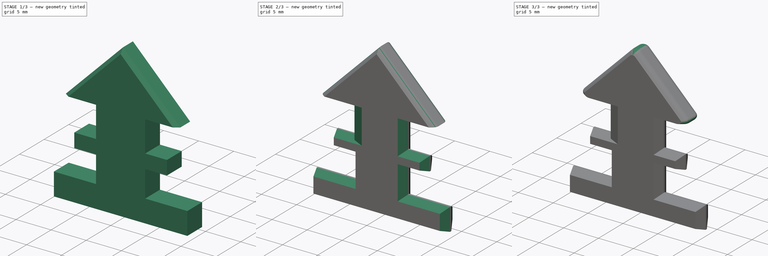
[diagram: build sequence overview — one tinted view per stage of 3, left to right]
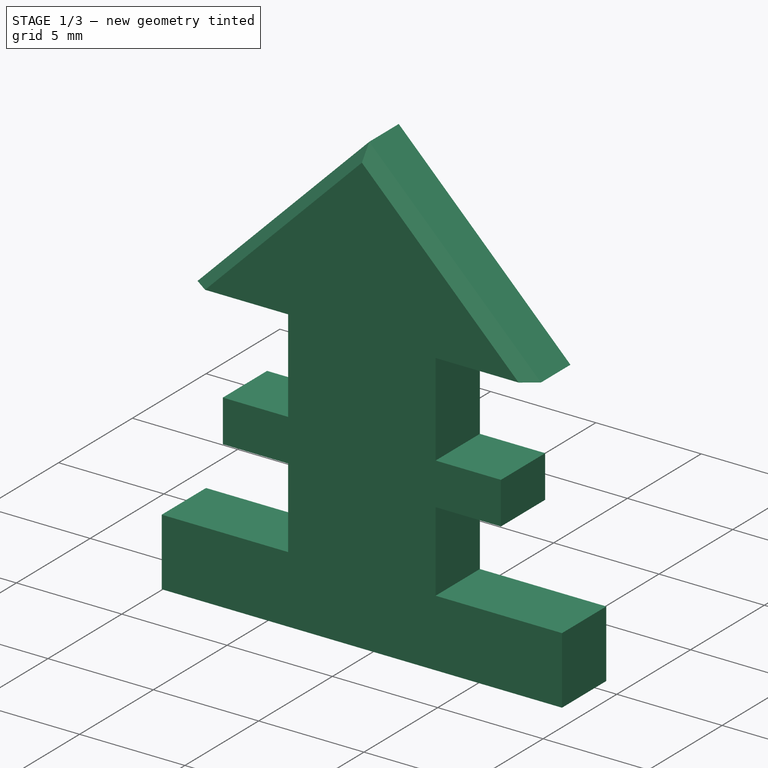
[diagram: stage 1 of 3 — iso view after this stage's code; geometry added in this stage tinted green]
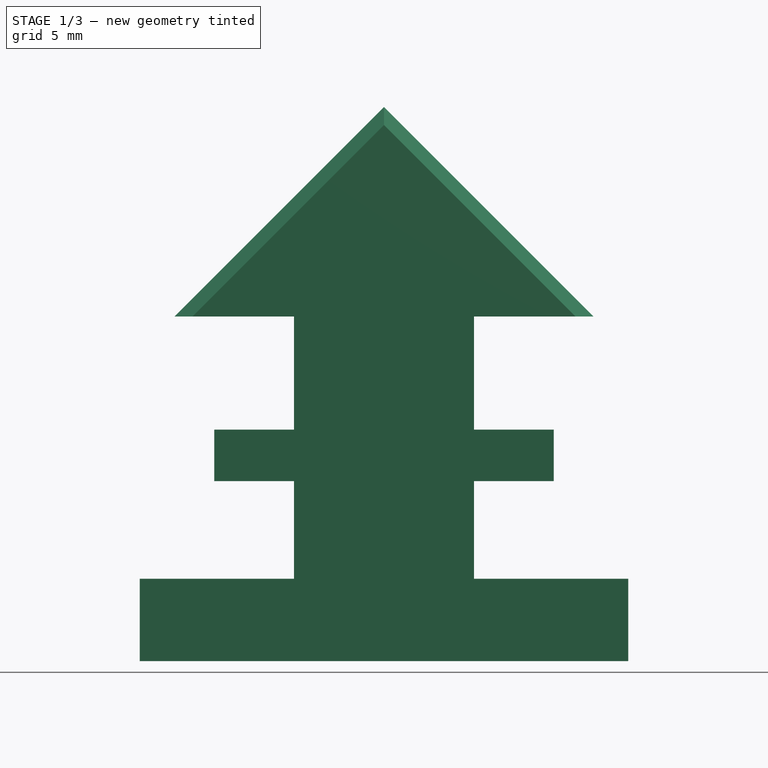
[diagram: stage 1 of 3 — front view after this stage's code; geometry added in this stage tinted green]
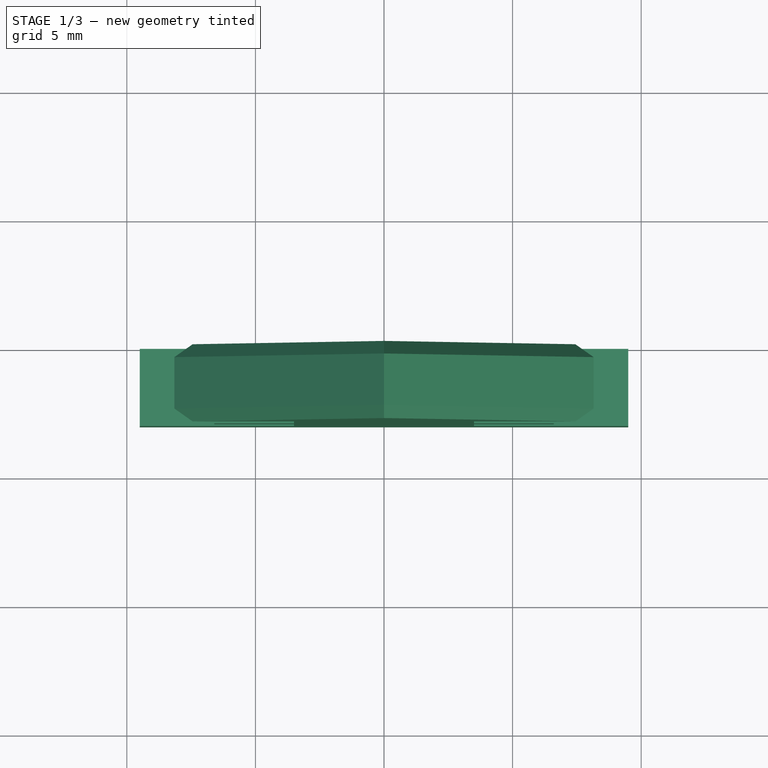
[diagram: stage 1 of 3 — top view after this stage's code; geometry added in this stage tinted green]
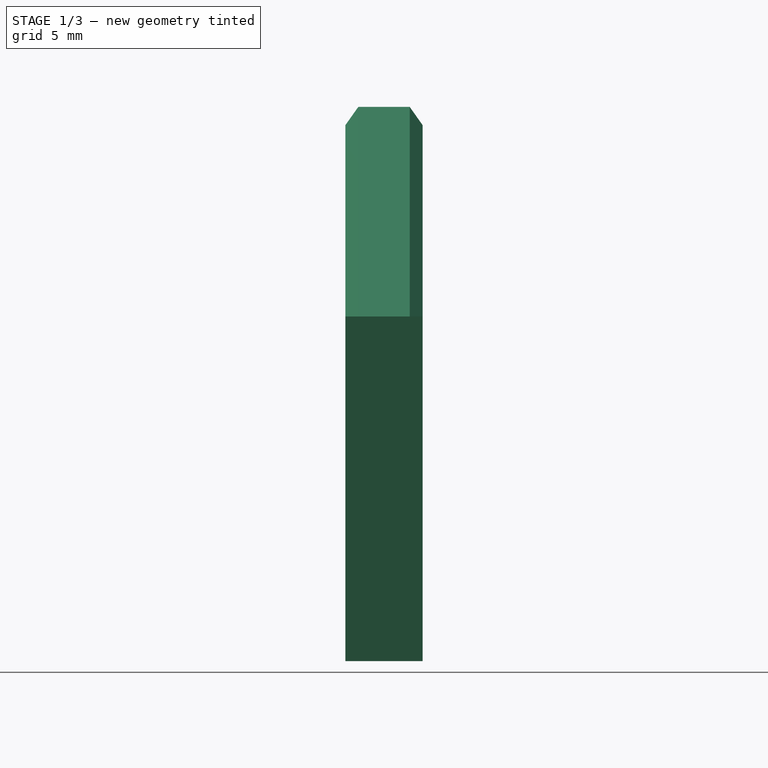
[diagram: stage 1 of 3 — right view after this stage's code; geometry added in this stage tinted green]
FCSTD DOCUMENT  (FreeCAD 1.0R39285 (Git))
Label: Клипса для жгута
License: All rights reserved
LicenseURL: https://en.wikipedia.org/wiki/All_rights_reserved
objects: PartDesign::Chamfer×3, PartDesign::Fillet×3, Sketcher::SketchObject×1, PartDesign::Pad×1, PartDesign::Body×1
note: 24 computed .brp shape members not serialized (recipe doc carries the construction recipe); baked Part::Feature solids carry a one-line shape summary decoded from their .brp

FEATURE [Sketcher::SketchObject] Sketch
  ArcFitTolerance = 1e-06
  AttachmentSupport = -> [XZ_Plane]
  FullyConstrained = true
  MakeInternals = false
  MapMode = 5
  Placement = pos=(0,0,0) rot=(1,0,0;1.5708rad)
  sketch-geometry (21):
    g0: LineSegment StartX=-8.15 StartY=2.625 StartZ=0 EndX=0 EndY=10.775 EndZ=0
    g1: LineSegment StartX=0 StartY=10.775 StartZ=0 EndX=8.15 EndY=2.625 EndZ=0
    g2: LineSegment StartX=8.15 StartY=2.625 StartZ=0 EndX=3.5 EndY=2.625 EndZ=0
    g3: LineSegment StartX=3.5 StartY=2.625 StartZ=0 EndX=3.5 EndY=-1.775 EndZ=0
    g4: LineSegment StartX=3.5 StartY=-1.775 StartZ=0 EndX=6.6 EndY=-1.775 EndZ=0
    g5: LineSegment StartX=6.6 StartY=-1.775 StartZ=0 EndX=6.6 EndY=-3.775 EndZ=0
    g6: LineSegment StartX=6.6 StartY=-3.775 StartZ=0 EndX=3.5 EndY=-3.775 EndZ=0
    g7: LineSegment StartX=3.5 StartY=-3.775 StartZ=0 EndX=3.5 EndY=-7.575 EndZ=0
    g8: LineSegment StartX=3.5 StartY=-7.575 StartZ=0 EndX=9.5 EndY=-7.575 EndZ=0
    g9: LineSegment StartX=9.5 StartY=-7.575 StartZ=0 EndX=9.5 EndY=-10.775 EndZ=0
    g10: LineSegment StartX=-8.15 StartY=2.625 StartZ=0 EndX=-3.5 EndY=2.625 EndZ=0
    g11: LineSegment StartX=-3.5 StartY=2.625 StartZ=0 EndX=-3.5 EndY=-1.775 EndZ=0
    g12: LineSegment StartX=-3.5 StartY=-1.775 StartZ=0 EndX=-6.6 EndY=-1.775 EndZ=0
    g13: LineSegment StartX=-6.6 StartY=-1.775 StartZ=0 EndX=-6.6 EndY=-3.775 EndZ=0
    g14: LineSegment StartX=-6.6 StartY=-3.775 StartZ=0 EndX=-3.5 EndY=-3.775 EndZ=0
    g15: LineSegment StartX=-3.5 StartY=-3.775 StartZ=0 EndX=-3.5 EndY=-7.575 EndZ=0
    g16: LineSegment StartX=-3.5 StartY=-7.575 StartZ=0 EndX=-9.5 EndY=-7.575 EndZ=0
    g17: LineSegment StartX=-9.5 StartY=-7.575 StartZ=0 EndX=-9.5 EndY=-10.775 EndZ=0
    g18: LineSegment StartX=-9.5 StartY=-10.775 StartZ=0 EndX=0 EndY=-10.775 EndZ=0
    g19: LineSegment StartX=0 StartY=-10.775 StartZ=0 EndX=9.5 EndY=-10.775 EndZ=0
    g20: LineSegment [constr] StartX=0 StartY=-10.775 StartZ=0 EndX=0 EndY=10.775 EndZ=0
  constraints (56):
    c: Coincident(g0,g1)
    c: Coincident(g1,g2)
    c: Coincident(g2,g3)
    c: Vertical(g3)
    c: Coincident(g3,g4)
    c: Coincident(g4,g5)
    c: Coincident(g5,g6)
    c: Coincident(g6,g7)
    c: Vertical(g7)
    c: Coincident(g7,g8)
    c: Coincident(g8,g9)
    c: Coincident(g10,g11)
    c: Coincident(g11,g12)
    c: Coincident(g12,g13)
    c: Coincident(g13,g14)
    c: Coincident(g14,g15)
    c: Vertical(g15)
    c: Coincident(g15,g16)
    c: Horizontal(g16)
    c: Coincident(g16,g17)
    c: Coincident(g17,g18)
    c: Coincident(g19,g9)
    c: Coincident(g18,g19)
    c: Horizontal(g18)
    c: Horizontal(g19)
    c: PointOnObject(g18,g-2)
    c: Vertical(g11)
    c: Horizontal(g12)
    c: Vertical(g13)
    c: Horizontal(g14)
    c: Vertical(g17)
    c: Vertical(g9)
    c: Horizontal(g8)
    c: Horizontal(g6)
    c: Vertical(g5)
    c: Horizontal(g4)
    c: Horizontal(g2)
    c: Angle(g0,g1) = 1.5708
    c: Symmetric(g8,g16,g-2)
    c: Symmetric(g4,g12,g-2)
    c: Symmetric(g10,g1,g-2)
    c: Symmetric(g2,g10,g-2)
    c: Coincident(g10,g0)
    c: Symmetric(g6,g14,g-2)
    c: Vertical(g6,g3)
    c: Coincident(g20,g18)
    c: Coincident(g20,g0)
    c: DistanceX(g11,g3) = 7
    c: DistanceX(g0,g1) = 16.3
    c: DistanceY(g3,g3) = 4.4
    c: DistanceY(g7,g7) = 3.8
    c: DistanceY(g9,g9) = 3.2
    c: DistanceX(g17,g9) = 19
    c: DistanceX(g12,g4) = 13.2
    c: DistanceY(g5,g5) = 2
    c: Symmetric(g18,g0,g-1)
FEATURE [PartDesign::Pad] Pad
  Direction = (0,-1,2e-16)
  Length = 3
  Length2 = 10
  Placement = pos=(0,0,0) rot=(1,0,0;1.5708rad)
  Profile = -> Sketch
  ReferenceAxis = -> Sketch [N_Axis]
  Refine = true
  Suppressed = false
  Type = 0
FEATURE [PartDesign::Chamfer] Chamfer
  Angle = 45
  Base = -> Pad [Edge7,Edge6,Edge4,Edge3]
  BaseFeature = -> Pad
  ChamferType = 0
  FlipDirection = false
  Placement = pos=(0,0,0) rot=(1,0,0;1.5708rad)
  Refine = true
  Size = 0.5
  Size2 = 1
  SupportTransform = false
  Suppressed = false
  UseAllEdges = false
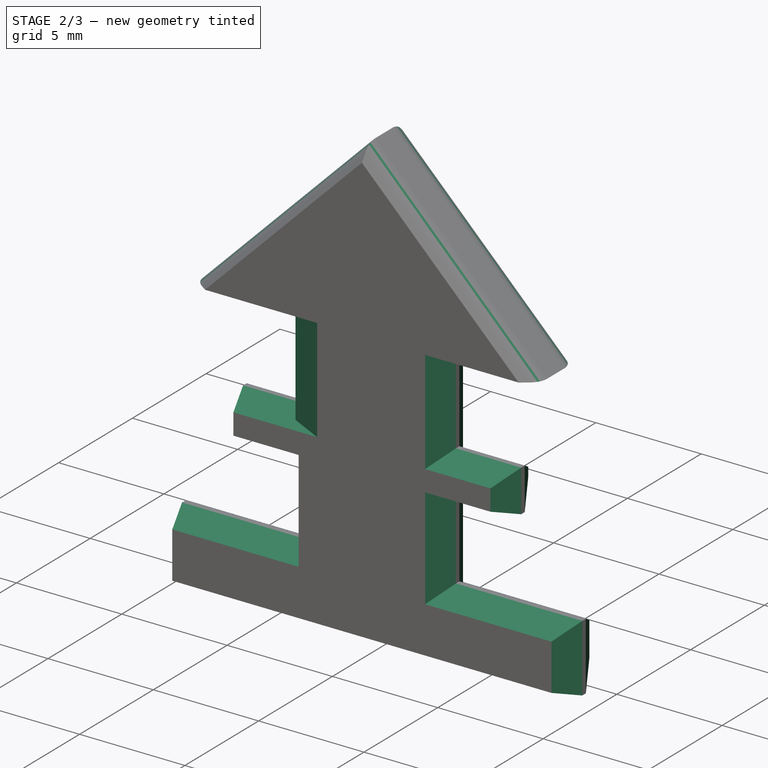
[diagram: stage 2 of 3 — iso view after this stage's code; geometry added in this stage tinted green]
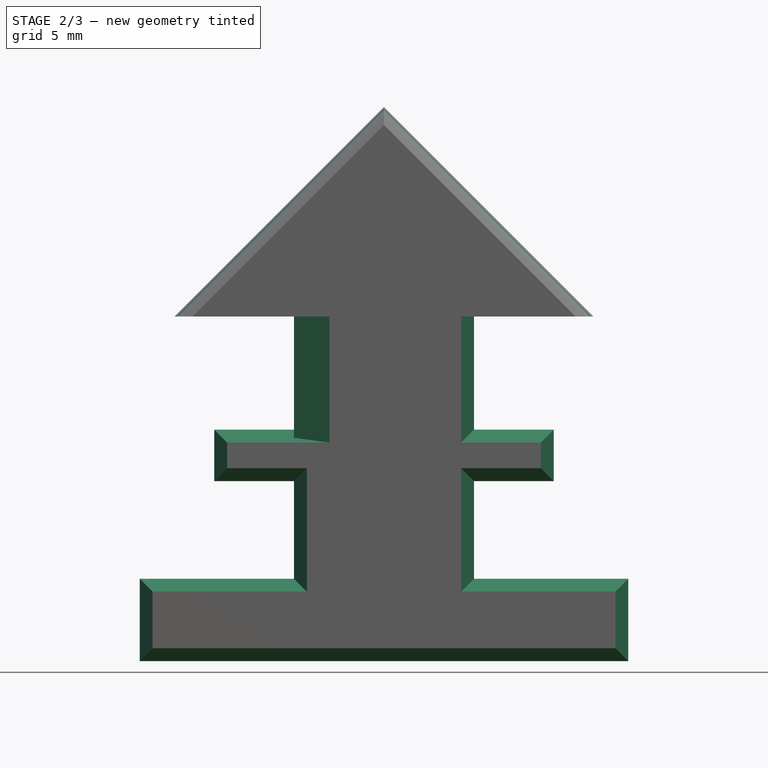
[diagram: stage 2 of 3 — front view after this stage's code; geometry added in this stage tinted green]
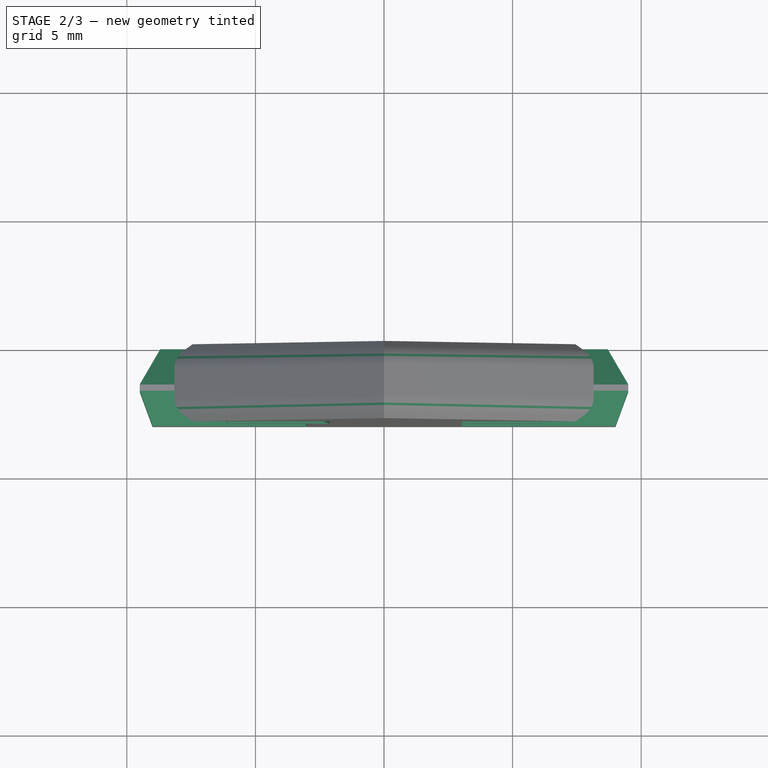
[diagram: stage 2 of 3 — top view after this stage's code; geometry added in this stage tinted green]
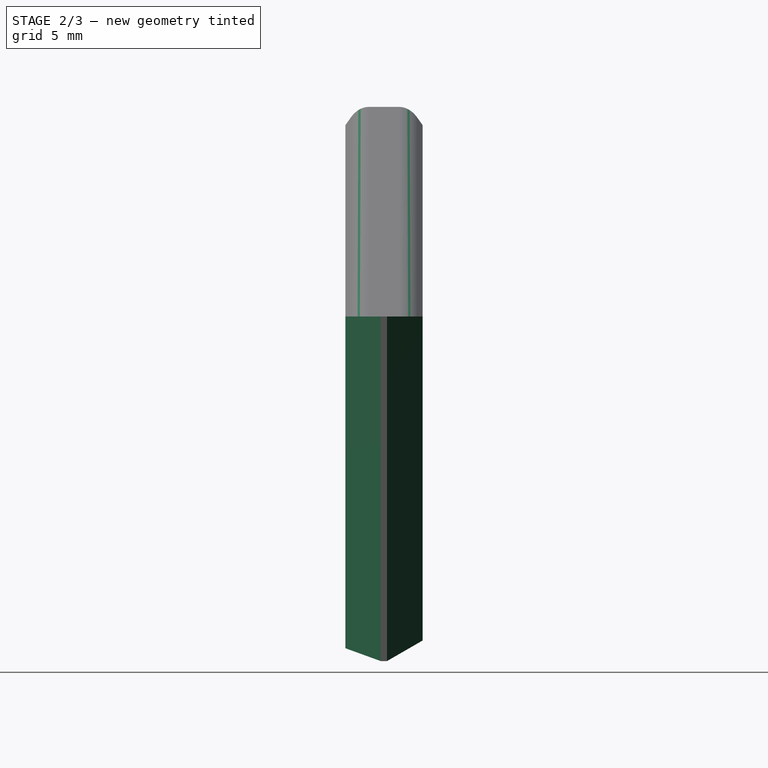
[diagram: stage 2 of 3 — right view after this stage's code; geometry added in this stage tinted green]
FEATURE [PartDesign::Fillet] Fillet
  Base = -> Chamfer [Edge2,Edge14,Edge15,Edge3]
  BaseFeature = -> Chamfer
  Placement = pos=(0,0,0) rot=(1,0,0;1.5708rad)
  Radius = 1
  Refine = true
  SupportTransform = false
  Suppressed = false
  UseAllEdges = false
FEATURE [PartDesign::Chamfer] Chamfer001
  Angle = 60
  Base = -> Fillet [Edge28,Edge30,Edge32,Edge34,Edge36,Edge38,Edge39,Edge37,Edge35,Edge33,Edge31,Edge29,Edge27,Edge26,Edge25]
  BaseFeature = -> Fillet
  ChamferType = 2
  FlipDirection = false
  Placement = pos=(0,0,0) rot=(1,0,0;1.5708rad)
  Refine = true
  Size = 0.8
  Size2 = 1
  SupportTransform = false
  Suppressed = false
  UseAllEdges = false
FEATURE [PartDesign::Chamfer] Chamfer002
  Angle = 70
  Base = -> Chamfer001 [Edge30,Edge32,Edge31,Edge29,Edge27,Edge25,Edge23,Edge12,Edge18,Edge20,Edge21,Edge22,Edge24,Edge26,Edge28]
  BaseFeature = -> Chamfer001
  ChamferType = 2
  FlipDirection = false
  Placement = pos=(0,0,0) rot=(1,0,0;1.5708rad)
  Refine = true
  Size = 0.5
  Size2 = 1
  SupportTransform = false
  Suppressed = false
  UseAllEdges = false
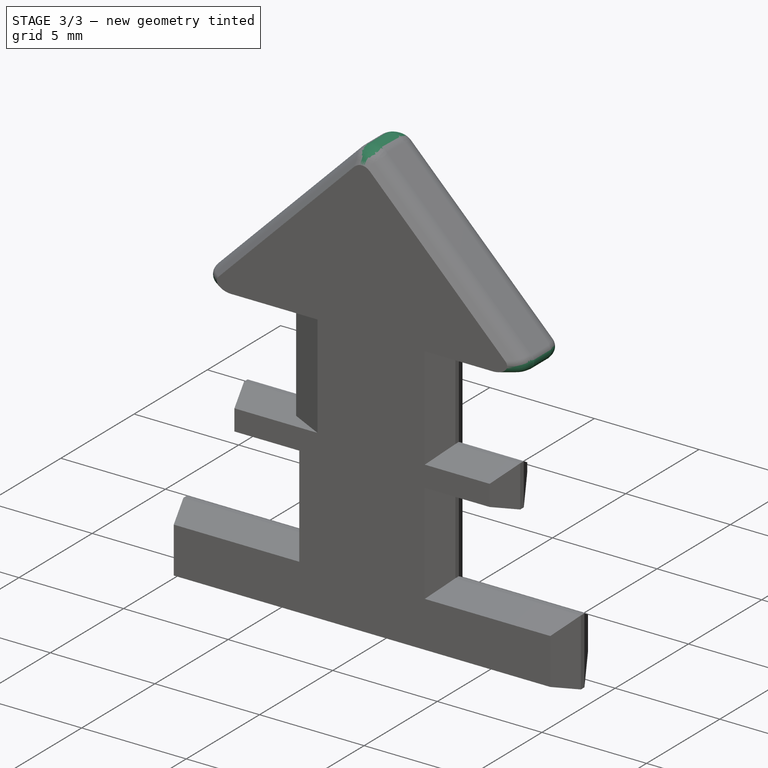
[diagram: stage 3 of 3 — iso view after this stage's code; geometry added in this stage tinted green]
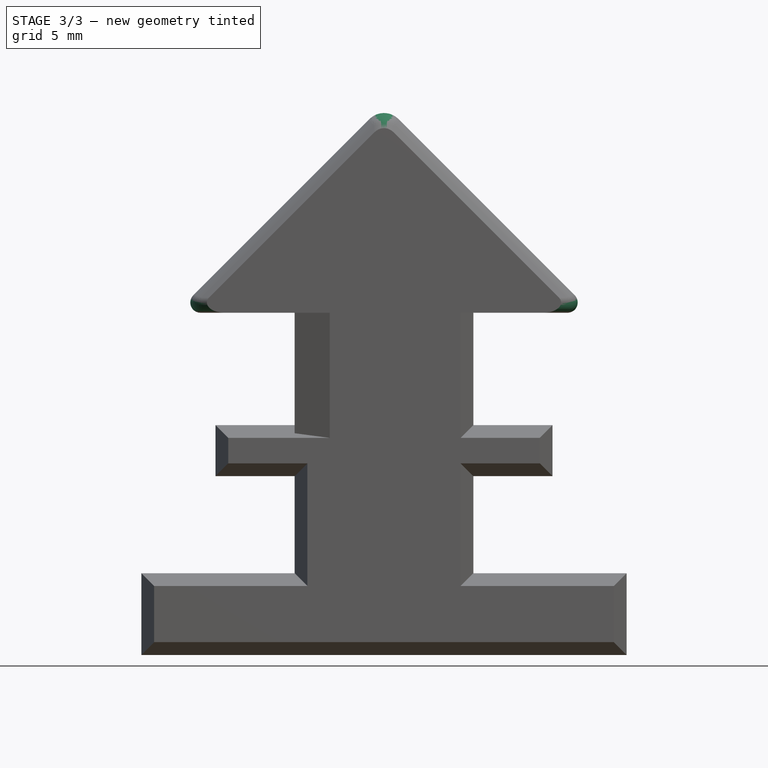
[diagram: stage 3 of 3 — front view after this stage's code; geometry added in this stage tinted green]
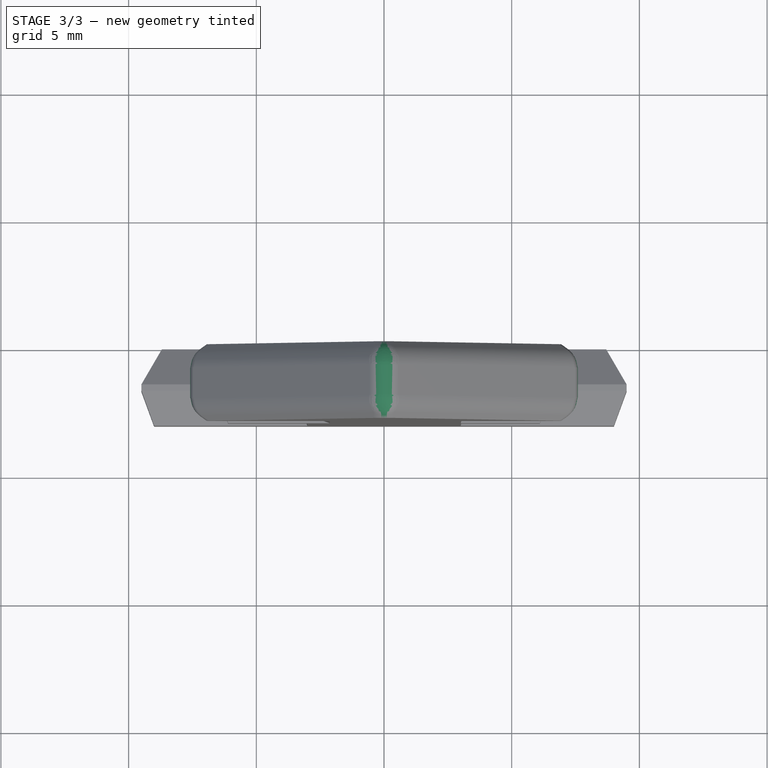
[diagram: stage 3 of 3 — top view after this stage's code; geometry added in this stage tinted green]
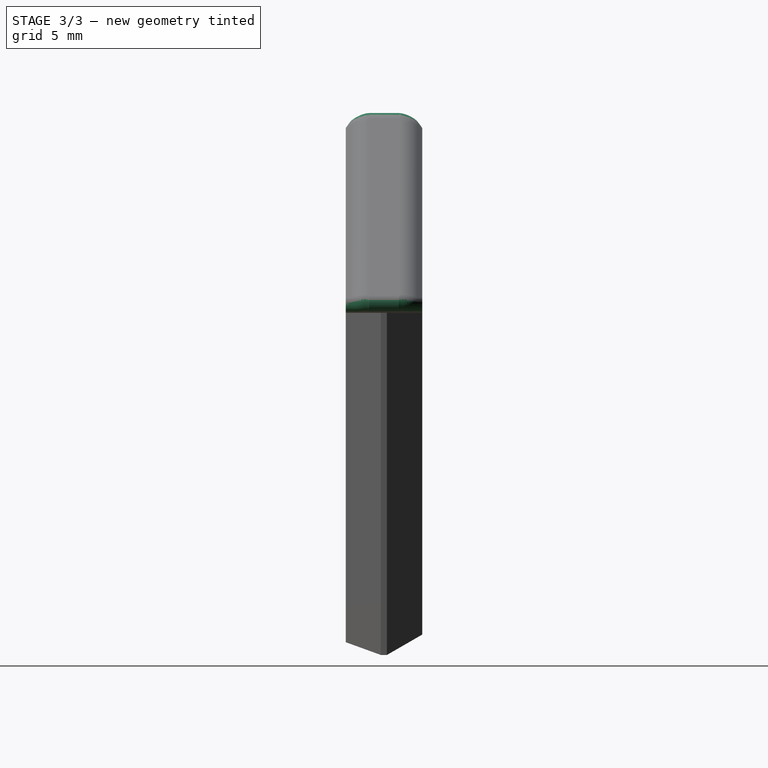
[diagram: stage 3 of 3 — right view after this stage's code; geometry added in this stage tinted green]
FEATURE [PartDesign::Fillet] Fillet001
  Base = -> Chamfer002 [Edge65]
  BaseFeature = -> Chamfer002
  Placement = pos=(0,0,0) rot=(1,0,0;1.5708rad)
  Radius = 0.8
  Refine = true
  SupportTransform = false
  Suppressed = false
  UseAllEdges = false
FEATURE [PartDesign::Fillet] Fillet002
  Base = -> Fillet001 [Edge47,Edge36]
  BaseFeature = -> Fillet001
  Placement = pos=(0,0,0) rot=(1,0,0;1.5708rad)
  Radius = 0.4
  Refine = true
  SupportTransform = false
  Suppressed = false
  UseAllEdges = false
FEATURE [PartDesign::Body] Body  label="Тело"
  AllowCompound = false
  Group = -> [Sketch,Pad,Chamfer,Fillet,Chamfer001,Chamfer002,Fillet001,Fillet002]
  Origin = -> Origin
  Tip = -> Fillet002
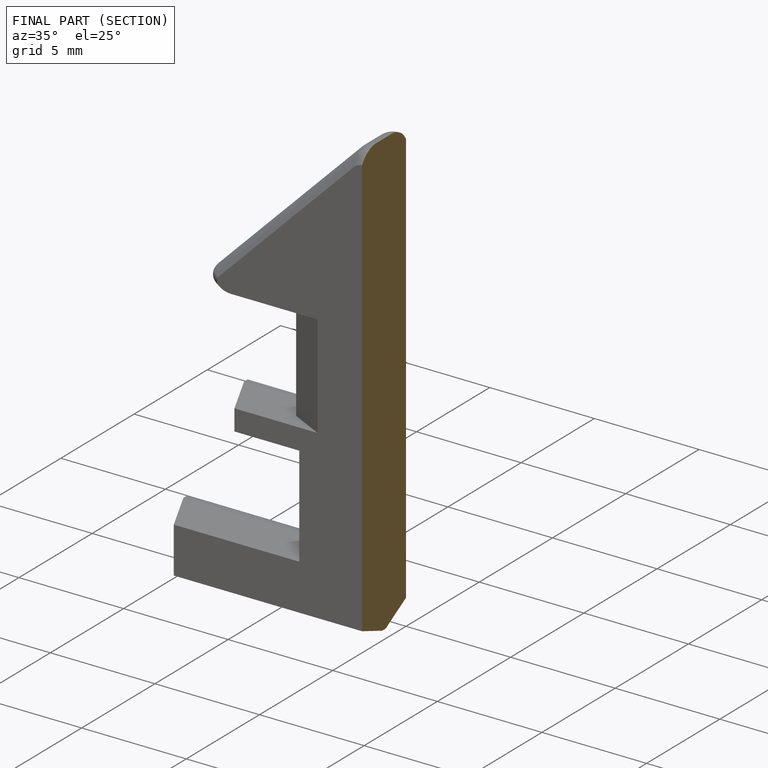
[diagram: finished part — half-section view (interior)]
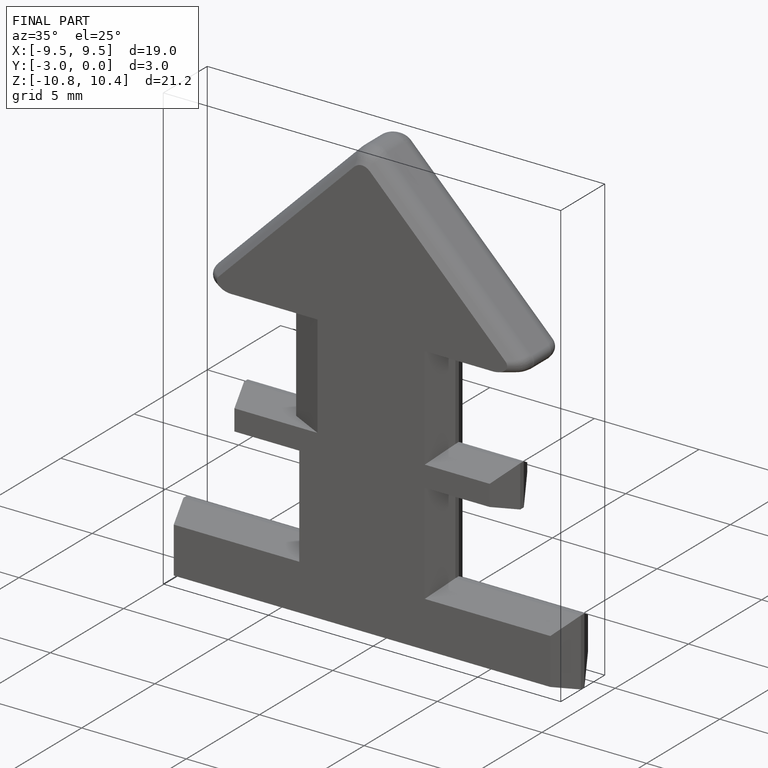
[diagram: finished part — iso view with bounding-box wireframe]
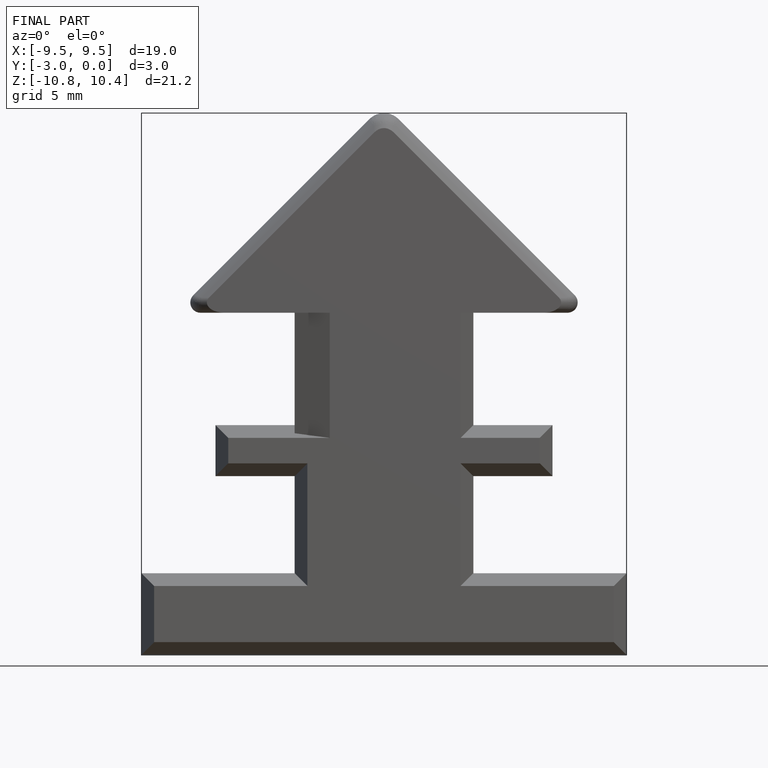
[diagram: finished part — front view with bounding-box wireframe]
